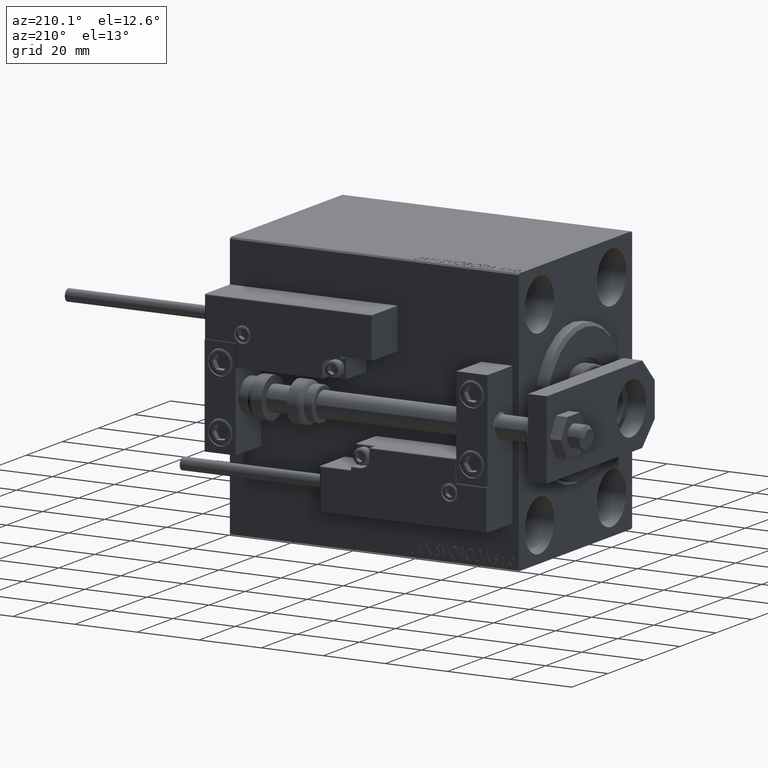
[diagram: clean part render]
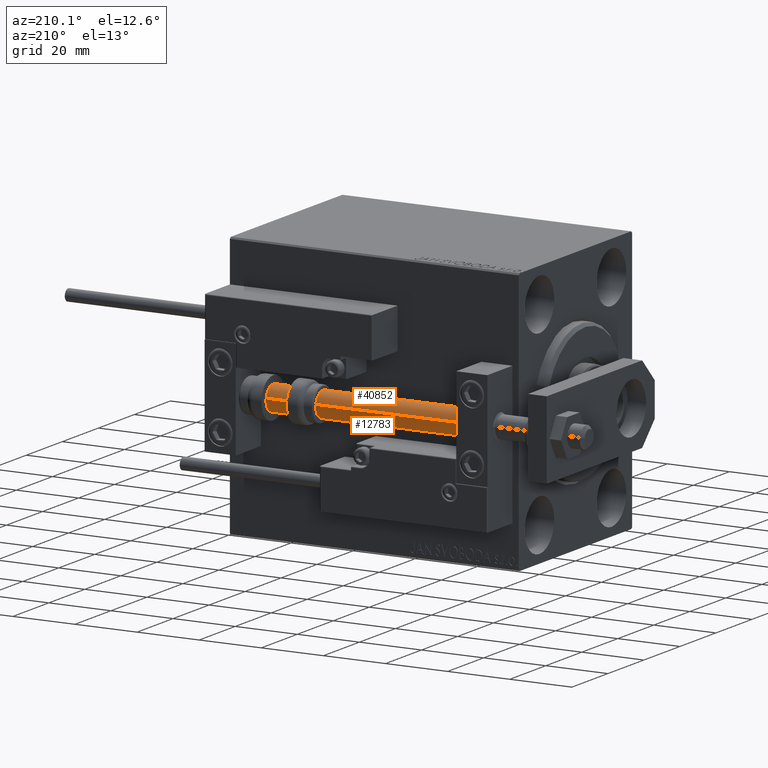
[diagram: same view with one multi-face feature highlighted, each face labeled with its STEP entity id]
A machine part, auxiliary view. The highlighted faces form ONE feature: a constant-radius fillet chain: 2 tangent blend faces with common blend radius 4 mm. The faces share edges in the B-rep.
Their STEP definitions:
[1] entity #12783 (Cylinder):
#1452 = DIRECTION ( 'NONE',  ( -0.000000000000000000, -0.000000000000000000, 1.000000000000000000 ) ) ;
#3085 = ORIENTED_EDGE ( 'NONE', *, *, #44849, .T. ) ;
#3198 = CARTESIAN_POINT ( 'NONE',  ( -4.000000000000000000, 0.000000000000000000, 93.00000000000000000 ) ) ;
#3606 = CARTESIAN_POINT ( 'NONE',  ( -4.000000000000000000, 0.000000000000000000, 93.00000000000000000 ) ) ;
#5493 = CARTESIAN_POINT ( 'NONE',  ( 0.000000000000000000, 0.000000000000000000, 93.00000000000000000 ) ) ;
#5745 = DIRECTION ( 'NONE',  ( -0.000000000000000000, -0.000000000000000000, -1.000000000000000000 ) ) ;
#6080 = FACE_OUTER_BOUND ( 'NONE', #32594, .T. ) ;
#8819 = DIRECTION ( 'NONE',  ( -1.000000000000000000, 0.000000000000000000, 0.000000000000000000 ) ) ;
#9568 = CARTESIAN_POINT ( 'NONE',  ( 0.000000000000000000, 0.000000000000000000, 2.000000000000029310 ) ) ;
#9937 = VERTEX_POINT ( 'NONE', #3198 ) ;
#12159 = DIRECTION ( 'NONE',  ( 0.000000000000000000, 0.000000000000000000, 1.000000000000000000 ) ) ;
#12647 = CARTESIAN_POINT ( 'NONE',  ( 0.000000000000000000, 0.000000000000000000, 93.00000000000000000 ) ) ;
#12783 = ADVANCED_FACE ( 'NONE', ( #6080 ), #28296, .T. ) ;
#14309 = CARTESIAN_POINT ( 'NONE',  ( -4.000000000000000000, 0.000000000000000000, 2.000000000000029310 ) ) ;
#14338 = CIRCLE ( 'NONE', #38626, 4.000000000000000000 ) ;
#15586 = CARTESIAN_POINT ( 'NONE',  ( 4.000000000000000000, 4.898587196589411843E-16, 2.000000000000029310 ) ) ;
#15710 = AXIS2_PLACEMENT_3D ( 'NONE', #12647, #12159, #28327 ) ;
#18819 = DIRECTION ( 'NONE',  ( -0.000000000000000000, -0.000000000000000000, -1.000000000000000000 ) ) ;
#19495 = ORIENTED_EDGE ( 'NONE', *, *, #27602, .F. ) ;
#22072 = VECTOR ( 'NONE', #24431, 1000.000000000000000 ) ;
#23367 = VERTEX_POINT ( 'NONE', #14309 ) ;
#23938 = CARTESIAN_POINT ( 'NONE',  ( 4.000000000000000000, 4.898587196589411843E-16, 93.00000000000000000 ) ) ;
#24431 = DIRECTION ( 'NONE',  ( -0.000000000000000000, -0.000000000000000000, -1.000000000000000000 ) ) ;
#26934 = ORIENTED_EDGE ( 'NONE', *, *, #45255, .T. ) ;
#27546 = VERTEX_POINT ( 'NONE', #45992 ) ;
#27602 = EDGE_CURVE ( 'NONE', #27546, #33609, #43181, .T. ) ;
#28296 = CYLINDRICAL_SURFACE ( 'NONE', #38707, 4.000000000000000000 ) ;
#28327 = DIRECTION ( 'NONE',  ( 1.000000000000000000, 0.000000000000000000, 0.000000000000000000 ) ) ;
#28893 = VECTOR ( 'NONE', #18819, 1000.000000000000000 ) ;
#32594 = EDGE_LOOP ( 'NONE', ( #19495, #46531, #3085, #26934 ) ) ;
#32604 = DIRECTION ( 'NONE',  ( 1.000000000000000000, 0.000000000000000000, 0.000000000000000000 ) ) ;
#33609 = VERTEX_POINT ( 'NONE', #15586 ) ;
#36951 = EDGE_CURVE ( 'NONE', #9937, #27546, #49698, .T. ) ;
#38626 = AXIS2_PLACEMENT_3D ( 'NONE', #9568, #1452, #32604 ) ;
#38707 = AXIS2_PLACEMENT_3D ( 'NONE', #5493, #5745, #8819 ) ;
#41336 = LINE ( 'NONE', #3606, #28893 ) ;
#43181 = LINE ( 'NONE', #23938, #22072 ) ;
#44849 = EDGE_CURVE ( 'NONE', #9937, #23367, #41336, .T. ) ;
#45255 = EDGE_CURVE ( 'NONE', #23367, #33609, #14338, .T. ) ;
#45992 = CARTESIAN_POINT ( 'NONE',  ( 4.000000000000000000, 4.898587196589411843E-16, 93.00000000000000000 ) ) ;
#46531 = ORIENTED_EDGE ( 'NONE', *, *, #36951, .F. ) ;
#49698 = CIRCLE ( 'NONE', #15710, 4.000000000000000000 ) ;
[2] entity #40852 (Cylinder):
#1410 = DIRECTION ( 'NONE',  ( -0.000000000000000000, -0.000000000000000000, -1.000000000000000000 ) ) ;
#3198 = CARTESIAN_POINT ( 'NONE',  ( -4.000000000000000000, 0.000000000000000000, 93.00000000000000000 ) ) ;
#3606 = CARTESIAN_POINT ( 'NONE',  ( -4.000000000000000000, 0.000000000000000000, 93.00000000000000000 ) ) ;
#8757 = DIRECTION ( 'NONE',  ( -0.000000000000000000, -0.000000000000000000, 1.000000000000000000 ) ) ;
#8778 = CARTESIAN_POINT ( 'NONE',  ( 0.000000000000000000, 0.000000000000000000, 93.00000000000000000 ) ) ;
#9937 = VERTEX_POINT ( 'NONE', #3198 ) ;
#10268 = EDGE_CURVE ( 'NONE', #33609, #23367, #35424, .T. ) ;
#11585 = CIRCLE ( 'NONE', #18840, 4.000000000000000000 ) ;
#12582 = CYLINDRICAL_SURFACE ( 'NONE', #41696, 4.000000000000000000 ) ;
#12883 = AXIS2_PLACEMENT_3D ( 'NONE', #47486, #8757, #40371 ) ;
#13226 = EDGE_LOOP ( 'NONE', ( #35393, #25311, #47515, #49208 ) ) ;
#14309 = CARTESIAN_POINT ( 'NONE',  ( -4.000000000000000000, 0.000000000000000000, 2.000000000000029310 ) ) ;
#15586 = CARTESIAN_POINT ( 'NONE',  ( 4.000000000000000000, 4.898587196589411843E-16, 2.000000000000029310 ) ) ;
#18819 = DIRECTION ( 'NONE',  ( -0.000000000000000000, -0.000000000000000000, -1.000000000000000000 ) ) ;
#18840 = AXIS2_PLACEMENT_3D ( 'NONE', #30666, #46864, #24064 ) ;
#22072 = VECTOR ( 'NONE', #24431, 1000.000000000000000 ) ;
#23367 = VERTEX_POINT ( 'NONE', #14309 ) ;
#23938 = CARTESIAN_POINT ( 'NONE',  ( 4.000000000000000000, 4.898587196589411843E-16, 93.00000000000000000 ) ) ;
#23969 = FACE_OUTER_BOUND ( 'NONE', #13226, .T. ) ;
#24064 = DIRECTION ( 'NONE',  ( 1.000000000000000000, 0.000000000000000000, 0.000000000000000000 ) ) ;
#24431 = DIRECTION ( 'NONE',  ( -0.000000000000000000, -0.000000000000000000, -1.000000000000000000 ) ) ;
#25311 = ORIENTED_EDGE ( 'NONE', *, *, #27602, .T. ) ;
#27546 = VERTEX_POINT ( 'NONE', #45992 ) ;
#27602 = EDGE_CURVE ( 'NONE', #27546, #33609, #43181, .T. ) ;
#28893 = VECTOR ( 'NONE', #18819, 1000.000000000000000 ) ;
#30666 = CARTESIAN_POINT ( 'NONE',  ( 0.000000000000000000, 0.000000000000000000, 93.00000000000000000 ) ) ;
#33609 = VERTEX_POINT ( 'NONE', #15586 ) ;
#33884 = EDGE_CURVE ( 'NONE', #27546, #9937, #11585, .T. ) ;
#35356 = DIRECTION ( 'NONE',  ( -1.000000000000000000, 0.000000000000000000, 0.000000000000000000 ) ) ;
#35393 = ORIENTED_EDGE ( 'NONE', *, *, #33884, .F. ) ;
#35424 = CIRCLE ( 'NONE', #12883, 4.000000000000000000 ) ;
#40371 = DIRECTION ( 'NONE',  ( 1.000000000000000000, 0.000000000000000000, 0.000000000000000000 ) ) ;
#40852 = ADVANCED_FACE ( 'NONE', ( #23969 ), #12582, .T. ) ;
#41336 = LINE ( 'NONE', #3606, #28893 ) ;
#41696 = AXIS2_PLACEMENT_3D ( 'NONE', #8778, #1410, #35356 ) ;
#43181 = LINE ( 'NONE', #23938, #22072 ) ;
#44849 = EDGE_CURVE ( 'NONE', #9937, #23367, #41336, .T. ) ;
#45992 = CARTESIAN_POINT ( 'NONE',  ( 4.000000000000000000, 4.898587196589411843E-16, 93.00000000000000000 ) ) ;
#46864 = DIRECTION ( 'NONE',  ( 0.000000000000000000, 0.000000000000000000, 1.000000000000000000 ) ) ;
#47486 = CARTESIAN_POINT ( 'NONE',  ( 0.000000000000000000, 0.000000000000000000, 2.000000000000029310 ) ) ;
#47515 = ORIENTED_EDGE ( 'NONE', *, *, #10268, .T. ) ;
#49208 = ORIENTED_EDGE ( 'NONE', *, *, #44849, .F. ) ;